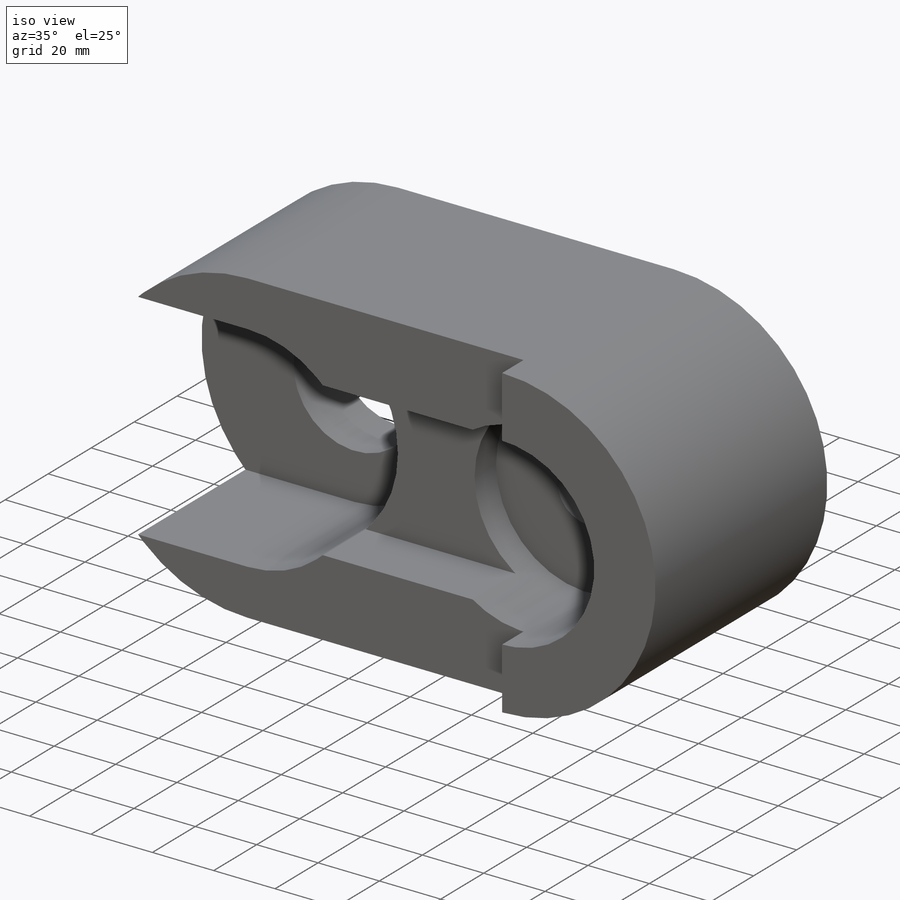
[diagram: iso view]
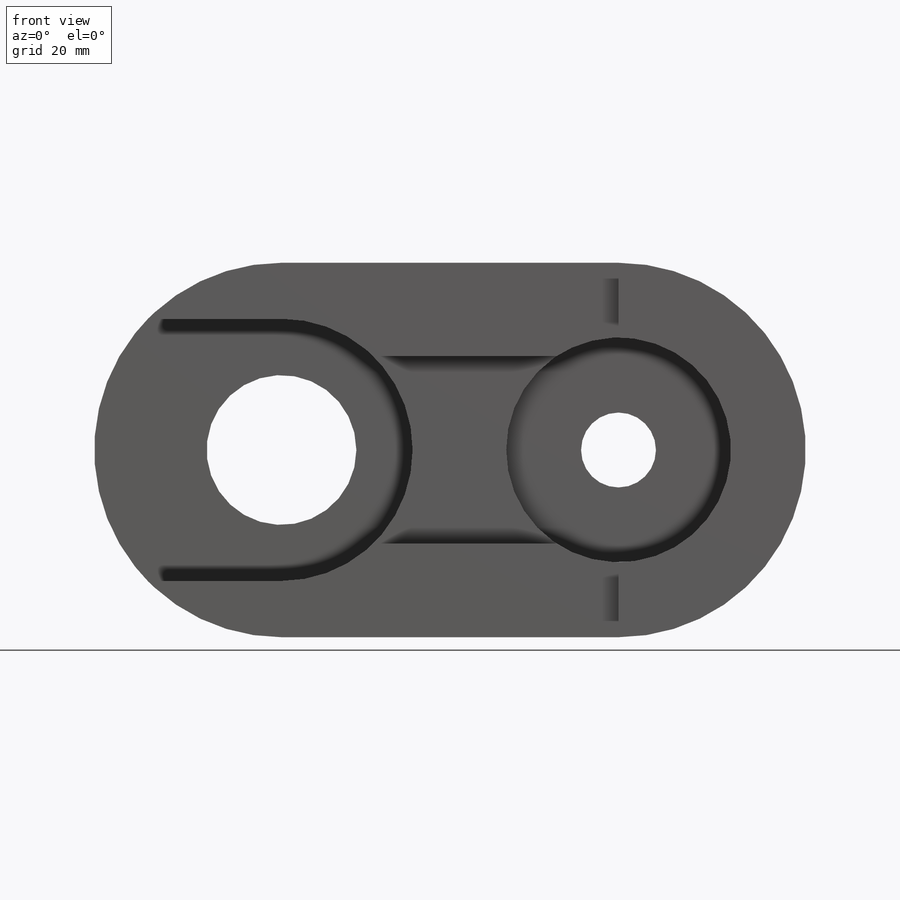
[diagram: front view]
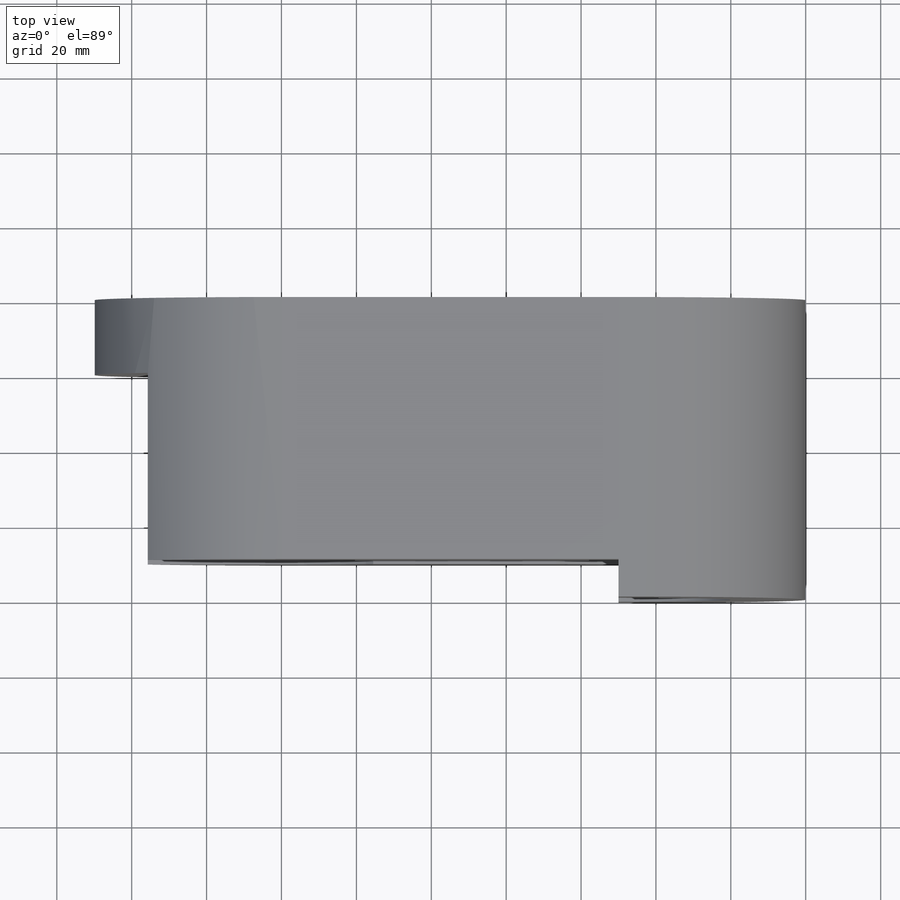
[diagram: top view]
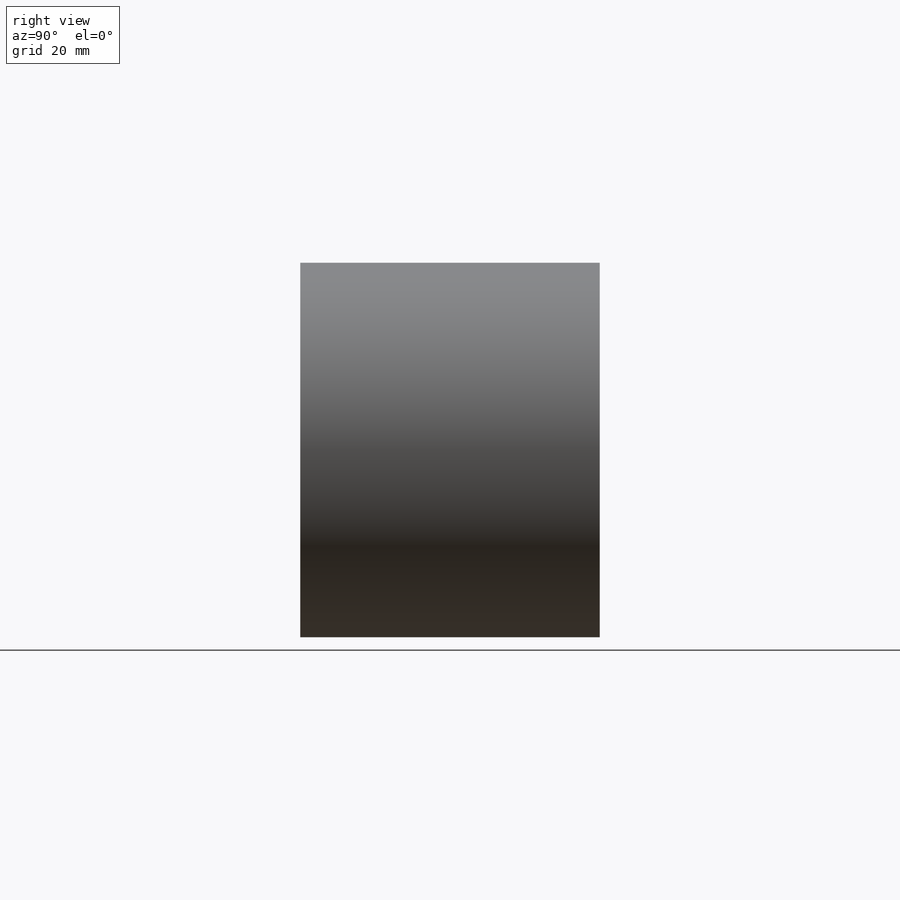
[diagram: right view]
SOLIDWORKS PART (.sldprt)
format: sldprt  version: not decoded by parser v0  size: 230,400 bytes
history: native  units: mm
features: sketch x7, cut_extrude x5, extrude x2, material x1 (+13 scaffold rows collapsed)
feature tree (28):
  scaffold x13  (default folders/planes/origin — collapsed)
  material  "Material <not specified>"
  sketch  "Sketch1"  dims[D1=50.0mm D2=50.0mm D3=90.0mm D4=90.0mm]
  extrude  "Boss-Extrude1"  Depth=70mm
  sketch  "Sketch2"  dims[D3=30.0mm D1=20.0mm D2=20.0mm]
  extrude  "Boss-Extrude2"  Depth=10mm
  sketch  "Sketch3"  dims[D1=60.0mm]
  cut_extrude  "Cut-Extrude1"  Depth=30mm
  sketch  "Sketch4"  dims[D1=20.0mm]
  cut_extrude  "Cut-Extrude2"  Depth=71mm
  sketch  "Sketch5"  dims[c1.D3=35.0mm c1.D1=35.0mm c1.D2=35.0mm c1.D4=35.0mm c1.D5=35.0mm c1.D6=35.0mm c2.D4=~35.707142mm c2.D5=~35.707142mm]
  cut_extrude  "Cut-Extrude6"  Depth=50mm
  sketch  "Sketch9"  dims[D1=40.0mm]
  cut_extrude  "Cut-Extrude7"  Depth=50mm
  sketch  "Sketch10"  dims[c1.D1=35.0mm c1.D2=35.0mm c1.D3=30.0mm c2.D1=10.0mm c2.D2=10.0mm c3.D1=~48.921979mm c3.D4=~48.921979mm]
  cut_extrude  "Cut-Extrude8"  Depth=20mm
decode coverage: 14 of 14 modeling features carry decoded parameters
note: ~ marks probable driven/reference dimensions
note: suppression state not decoded; provenance and decode notes live in map.json
